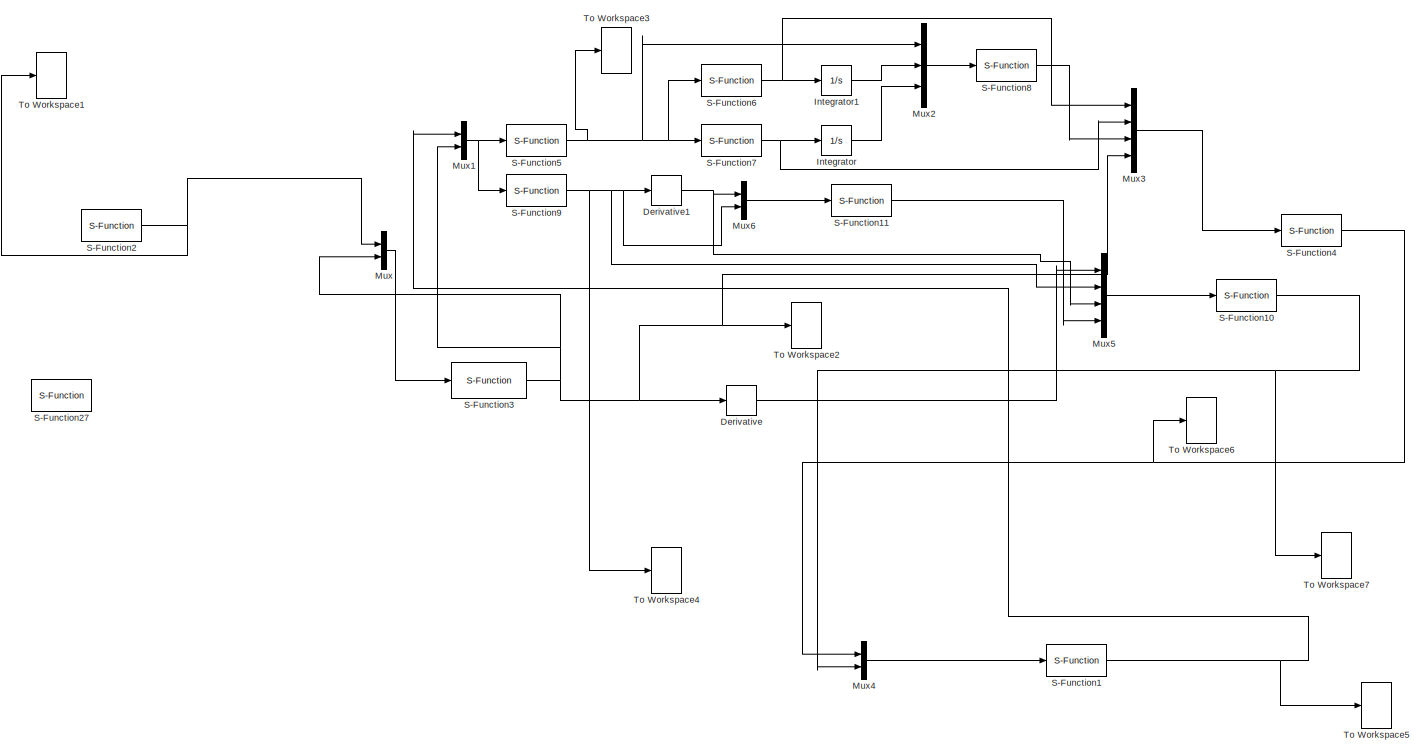
[diagram: root canvas - part 1/3, top center region]
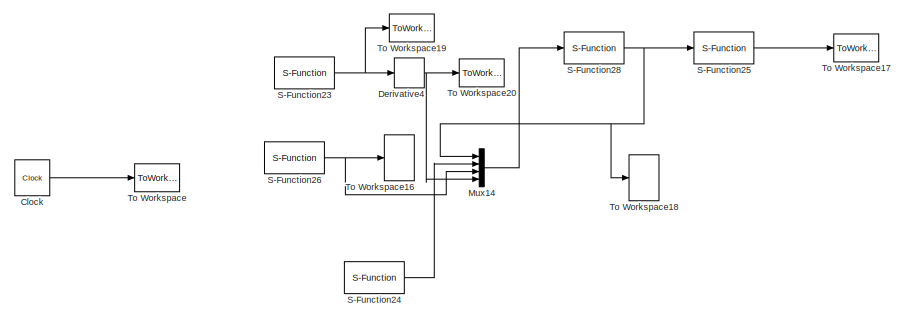
[diagram: root canvas - part 2/3, top left region]
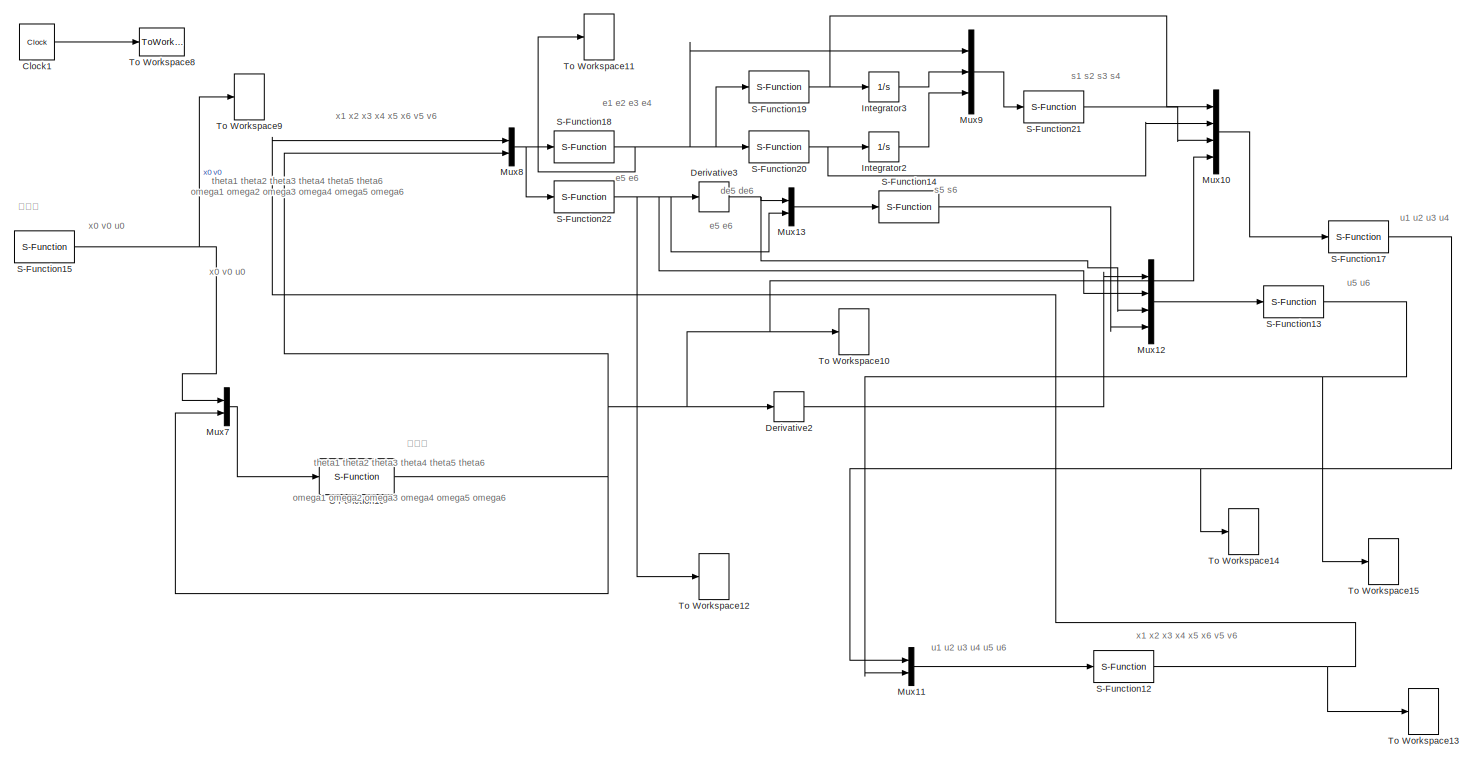
[diagram: root canvas - part 3/3, bottom right region]
MODEL slx_ba2bc7b5ceec
KIND model
CONFIG AbsTol = auto
CONFIG EnableMultiTasking = on
CONFIG FixedStep = 0.001
CONFIG MaxStep = auto
CONFIG MinStep = auto
CONFIG RelTol = 1e-3
CONFIG SampleTimeConstraint = Unconstrained
CONFIG Solver = ode4
CONFIG SolverName = ode4
CONFIG StartTime = 0.0
CONFIG StopTime = 10
BLOCK [Clock] Clock
  DisplayTime = on
BLOCK [Clock] Clock1
  Commented = on
  DisplayTime = on
BLOCK [Derivative] Derivative
  Commented = on
BLOCK [Derivative] Derivative1
  Commented = on
BLOCK [Derivative] Derivative2
  Commented = on
BLOCK [Derivative] Derivative3
  Commented = on
BLOCK [Derivative] Derivative4
BLOCK [Integrator] Integrator
  Commented = on
  Ports = [1, 1]
BLOCK [Integrator] Integrator1
  Commented = on
  Ports = [1, 1]
BLOCK [Integrator] Integrator2
  Commented = on
  Ports = [1, 1]
BLOCK [Integrator] Integrator3
  Commented = on
  Ports = [1, 1]
BLOCK [Mux] Mux
  Commented = on
  DisplayOption = bar
  Inputs = 2
  Ports = [2, 1]
BLOCK [Mux] Mux1
  Commented = on
  DisplayOption = bar
  Inputs = 2
  Ports = [2, 1]
BLOCK [Mux] Mux10
  Commented = on
  DisplayOption = bar
  Ports = [4, 1]
BLOCK [Mux] Mux11
  Commented = on
  DisplayOption = bar
  Inputs = 2
  Ports = [2, 1]
BLOCK [Mux] Mux12
  Commented = on
  DisplayOption = bar
  Ports = [4, 1]
BLOCK [Mux] Mux13
  Commented = on
  DisplayOption = bar
  Inputs = 2
  Ports = [2, 1]
BLOCK [Mux] Mux14
  DisplayOption = bar
  Ports = [4, 1]
BLOCK [Mux] Mux2
  Commented = on
  DisplayOption = bar
  Inputs = 3
  Ports = [3, 1]
BLOCK [Mux] Mux3
  Commented = on
  DisplayOption = bar
  Ports = [4, 1]
BLOCK [Mux] Mux4
  Commented = on
  DisplayOption = bar
  Inputs = 2
  Ports = [2, 1]
BLOCK [Mux] Mux5
  Commented = on
  DisplayOption = bar
  Ports = [4, 1]
BLOCK [Mux] Mux6
  Commented = on
  DisplayOption = bar
  Inputs = 2
  Ports = [2, 1]
BLOCK [Mux] Mux7
  Commented = on
  DisplayOption = bar
  Inputs = 2
  Ports = [2, 1]
BLOCK [Mux] Mux8
  Commented = on
  DisplayOption = bar
  Inputs = 2
  Ports = [2, 1]
BLOCK [Mux] Mux9
  Commented = on
  DisplayOption = bar
  Inputs = 3
  Ports = [3, 1]
BLOCK [S-Function] S-Function1
  Commented = on
  EnableBusSupport = off
  FunctionName = Plant
  Ports = [1, 1]
  SFcnIsStateOwnerBlock = off
  SFunctionDeploymentMode = off
BLOCK [S-Function] S-Function10
  Commented = on
  EnableBusSupport = off
  FunctionName = ul
  Ports = [1, 1]
  SFcnIsStateOwnerBlock = off
  SFunctionDeploymentMode = off
BLOCK [S-Function] S-Function11
  Commented = on
  EnableBusSupport = off
  FunctionName = s_l
  Ports = [1, 1]
  SFcnIsStateOwnerBlock = off
  SFunctionDeploymentMode = off
BLOCK [S-Function] S-Function12
  Commented = on
  EnableBusSupport = off
  FunctionName = Plant
  Ports = [1, 1]
  SFcnIsStateOwnerBlock = off
  SFunctionDeploymentMode = off
BLOCK [S-Function] S-Function13
  Commented = on
  EnableBusSupport = off
  FunctionName = ul
  Ports = [1, 1]
  SFcnIsStateOwnerBlock = off
  SFunctionDeploymentMode = off
BLOCK [S-Function] S-Function14
  Commented = on
  EnableBusSupport = off
  FunctionName = s_l
  Ports = [1, 1]
  SFcnIsStateOwnerBlock = off
  SFunctionDeploymentMode = off
BLOCK [S-Function] S-Function15
  Commented = on
  EnableBusSupport = off
  FunctionName = Leader
  Ports = [0, 1]
  SFcnIsStateOwnerBlock = off
  SFunctionDeploymentMode = off
BLOCK [S-Function] S-Function16
  Commented = on
  EnableBusSupport = off
  FunctionName = Observer
  Ports = [1, 1]
  SFcnIsStateOwnerBlock = off
  SFunctionDeploymentMode = off
BLOCK [S-Function] S-Function17
  Commented = on
  EnableBusSupport = off
  FunctionName = uk
  Ports = [1, 1]
  SFcnIsStateOwnerBlock = off
  SFunctionDeploymentMode = off
BLOCK [S-Function] S-Function18
  Commented = on
  EnableBusSupport = off
  FunctionName = ek
  Ports = [1, 1]
  SFcnIsStateOwnerBlock = off
  SFunctionDeploymentMode = off
BLOCK [S-Function] S-Function19
  Commented = on
  EnableBusSupport = off
  FunctionName = sigrk_ek
  Ports = [1, 1]
  SFcnIsStateOwnerBlock = off
  SFunctionDeploymentMode = off
BLOCK [S-Function] S-Function2
  Commented = on
  EnableBusSupport = off
  FunctionName = Leader
  Ports = [0, 1]
  SFcnIsStateOwnerBlock = off
  SFunctionDeploymentMode = off
BLOCK [S-Function] S-Function20
  Commented = on
  EnableBusSupport = off
  FunctionName = sigkk_ek
  Ports = [1, 1]
  SFcnIsStateOwnerBlock = off
  SFunctionDeploymentMode = off
BLOCK [S-Function] S-Function21
  Commented = on
  EnableBusSupport = off
  FunctionName = s_k
  Ports = [1, 1]
  SFcnIsStateOwnerBlock = off
  SFunctionDeploymentMode = off
BLOCK [S-Function] S-Function22
  Commented = on
  EnableBusSupport = off
  FunctionName = el
  Ports = [1, 1]
  SFcnIsStateOwnerBlock = off
  SFunctionDeploymentMode = off
BLOCK [S-Function] S-Function23
  EnableBusSupport = off
  FunctionName = h3
  Ports = [0, 1]
  SFcnIsStateOwnerBlock = off
  SFunctionDeploymentMode = off
BLOCK [S-Function] S-Function24
  EnableBusSupport = off
  FunctionName = eix0
  Ports = [0, 1]
  SFcnIsStateOwnerBlock = off
  SFunctionDeploymentMode = off
BLOCK [S-Function] S-Function25
  EnableBusSupport = off
  FunctionName = Plant
  Ports = [1, 1]
  SFcnIsStateOwnerBlock = off
  SFunctionDeploymentMode = off
BLOCK [S-Function] S-Function26
  EnableBusSupport = off
  FunctionName = Leader
  Ports = [0, 1]
  SFcnIsStateOwnerBlock = off
  SFunctionDeploymentMode = off
BLOCK [S-Function] S-Function27
  Commented = on
  EnableBusSupport = off
  FunctionName = ul
  Ports = [1, 1]
  SFcnIsStateOwnerBlock = off
  SFunctionDeploymentMode = off
BLOCK [S-Function] S-Function28
  EnableBusSupport = off
  FunctionName = ul
  Ports = [1, 1]
  SFcnIsStateOwnerBlock = off
  SFunctionDeploymentMode = off
BLOCK [S-Function] S-Function3
  Commented = on
  EnableBusSupport = off
  FunctionName = Observer
  Ports = [1, 1]
  SFcnIsStateOwnerBlock = off
  SFunctionDeploymentMode = off
BLOCK [S-Function] S-Function4
  Commented = on
  EnableBusSupport = off
  FunctionName = uk
  Ports = [1, 1]
  SFcnIsStateOwnerBlock = off
  SFunctionDeploymentMode = off
BLOCK [S-Function] S-Function5
  Commented = on
  EnableBusSupport = off
  FunctionName = ek
  Ports = [1, 1]
  SFcnIsStateOwnerBlock = off
  SFunctionDeploymentMode = off
BLOCK [S-Function] S-Function6
  Commented = on
  EnableBusSupport = off
  FunctionName = sigrk_ek
  Ports = [1, 1]
  SFcnIsStateOwnerBlock = off
  SFunctionDeploymentMode = off
BLOCK [S-Function] S-Function7
  Commented = on
  EnableBusSupport = off
  FunctionName = sigkk_ek
  Ports = [1, 1]
  SFcnIsStateOwnerBlock = off
  SFunctionDeploymentMode = off
BLOCK [S-Function] S-Function8
  Commented = on
  EnableBusSupport = off
  FunctionName = s_k
  Ports = [1, 1]
  SFcnIsStateOwnerBlock = off
  SFunctionDeploymentMode = off
BLOCK [S-Function] S-Function9
  Commented = on
  EnableBusSupport = off
  FunctionName = el
  Ports = [1, 1]
  SFcnIsStateOwnerBlock = off
  SFunctionDeploymentMode = off
BLOCK [ToWorkspace] To Workspace
  MaxDataPoints = inf
  Ports = [1]
  SampleTime = -1
  VariableName = t
BLOCK [ToWorkspace] To Workspace1
  Commented = on
  MaxDataPoints = inf
  Ports = [1]
  SampleTime = -1
  VariableName = y1
BLOCK [ToWorkspace] To Workspace10
  Commented = on
  MaxDataPoints = inf
  Ports = [1]
  SampleTime = -1
  VariableName = y5
BLOCK [ToWorkspace] To Workspace11
  Commented = on
  MaxDataPoints = inf
  Ports = [1]
  SampleTime = -1
  VariableName = y6
BLOCK [ToWorkspace] To Workspace12
  Commented = on
  MaxDataPoints = inf
  Ports = [1]
  SampleTime = -1
  VariableName = y7
BLOCK [ToWorkspace] To Workspace13
  Commented = on
  MaxDataPoints = inf
  Ports = [1]
  SampleTime = -1
  VariableName = y8
BLOCK [ToWorkspace] To Workspace14
  Commented = on
  MaxDataPoints = inf
  Ports = [1]
  SampleTime = -1
  VariableName = ut
BLOCK [ToWorkspace] To Workspace15
  Commented = on
  MaxDataPoints = inf
  Ports = [1]
  SampleTime = -1
  VariableName = ut3
BLOCK [ToWorkspace] To Workspace16
  MaxDataPoints = inf
  Ports = [1]
  SampleTime = -1
  VariableName = y10
BLOCK [ToWorkspace] To Workspace17
  MaxDataPoints = inf
  Ports = [1]
  SampleTime = -1
  VariableName = y
BLOCK [ToWorkspace] To Workspace18
  MaxDataPoints = inf
  Ports = [1]
  SampleTime = -1
  VariableName = y11
BLOCK [ToWorkspace] To Workspace19
  MaxDataPoints = inf
  Ports = [1]
  SampleTime = -1
  VariableName = y12
BLOCK [ToWorkspace] To Workspace2
  Commented = on
  MaxDataPoints = inf
  Ports = [1]
  SampleTime = -1
  VariableName = y2
BLOCK [ToWorkspace] To Workspace20
  MaxDataPoints = inf
  Ports = [1]
  SampleTime = -1
  VariableName = y13
BLOCK [ToWorkspace] To Workspace3
  Commented = on
  MaxDataPoints = inf
  Ports = [1]
  SampleTime = -1
  VariableName = y4
BLOCK [ToWorkspace] To Workspace4
  Commented = on
  MaxDataPoints = inf
  Ports = [1]
  SampleTime = -1
  VariableName = y3
BLOCK [ToWorkspace] To Workspace5
  Commented = on
  MaxDataPoints = inf
  Ports = [1]
  SampleTime = -1
  VariableName = y
BLOCK [ToWorkspace] To Workspace6
  Commented = on
  MaxDataPoints = inf
  Ports = [1]
  SampleTime = -1
  VariableName = ut1
BLOCK [ToWorkspace] To Workspace7
  Commented = on
  MaxDataPoints = inf
  Ports = [1]
  SampleTime = -1
  VariableName = ut2
BLOCK [ToWorkspace] To Workspace8
  Commented = on
  MaxDataPoints = inf
  Ports = [1]
  SampleTime = -1
  VariableName = t1
BLOCK [ToWorkspace] To Workspace9
  Commented = on
  MaxDataPoints = inf
  Ports = [1]
  SampleTime = -1
  VariableName = y9
ANNOTATION (root): s1 s2 s3 s4
ANNOTATION (root): x0 v0 u0
ANNOTATION (root): de5 de6
ANNOTATION (root): e1 e2 e3 e4
ANNOTATION (root): e5 e6
ANNOTATION (root): s5 s6
ANNOTATION (root): theta1 theta2 theta3 theta4 theta5 theta6 omega1 omega2 omega3 omega4 omega5 omega6
ANNOTATION (root): u1 u2 u3 u4
ANNOTATION (root): u1 u2 u3 u4 u5 u6
ANNOTATION (root): u5 u6
ANNOTATION (root): x1 x2 x3 x4 x5 x6 v5 v6
ANNOTATION (root): 没问题
LINE Clock1:1 -> To Workspace8:1
LINE Clock:1 -> To Workspace:1
NET Derivative1:1 -> Mux5:3, Mux6:1
LINE Derivative2:1 -> Mux12:1
NET Derivative3:1 -> Mux12:3, Mux13:1
NET Derivative4:1 -> Mux14:4, To Workspace20:1
LINE Derivative:1 -> Mux5:1
LINE Integrator1:1 -> Mux2:2
LINE Integrator2:1 -> Mux9:3
LINE Integrator3:1 -> Mux9:2
LINE Integrator:1 -> Mux2:3
LINE Mux10:1 -> S-Function17:1
LINE Mux11:1 -> S-Function12:1
LINE Mux12:1 -> S-Function13:1
LINE Mux13:1 -> S-Function14:1
LINE Mux14:1 -> S-Function28:1
NET Mux1:1 -> S-Function5:1, S-Function9:1
LINE Mux2:1 -> S-Function8:1
LINE Mux3:1 -> S-Function4:1
LINE Mux4:1 -> S-Function1:1
LINE Mux5:1 -> S-Function10:1
LINE Mux6:1 -> S-Function11:1
LINE Mux7:1 -> S-Function16:1
NET Mux8:1 -> S-Function18:1, S-Function22:1
LINE Mux9:1 -> S-Function21:1
LINE Mux:1 -> S-Function3:1
NET S-Function10:1 -> Mux4:2, To Workspace7:1
LINE S-Function11:1 -> Mux5:4
NET S-Function12:1 -> Mux8:1, To Workspace13:1
NET S-Function13:1 -> Mux11:2, To Workspace15:1
LINE S-Function14:1 -> Mux12:4
NET S-Function15:1 -> Mux7:1, To Workspace9:1
NET S-Function16:1 -> Derivative2:1, Mux10:4, Mux7:2, Mux8:2, To Workspace10:1
NET S-Function17:1 -> Mux11:1, To Workspace14:1
NET S-Function18:1 -> Mux9:1, S-Function19:1, S-Function20:1, To Workspace11:1
NET S-Function19:1 -> Integrator3:1, Mux10:1
NET S-Function1:1 -> Mux1:1, To Workspace5:1
NET S-Function20:1 -> Integrator2:1, Mux10:2
LINE S-Function21:1 -> Mux10:3
NET S-Function22:1 -> Derivative3:1, Mux12:2, Mux13:2, To Workspace12:1
NET S-Function23:1 -> Derivative4:1, To Workspace19:1
LINE S-Function24:1 -> Mux14:2
LINE S-Function25:1 -> To Workspace17:1
NET S-Function26:1 -> Mux14:3, To Workspace16:1
NET S-Function28:1 -> Mux14:1, S-Function25:1, To Workspace18:1
NET S-Function2:1 -> Mux:1, To Workspace1:1
NET S-Function3:1 -> Derivative:1, Mux1:2, Mux3:4, Mux:2, To Workspace2:1
NET S-Function4:1 -> Mux4:1, To Workspace6:1
NET S-Function5:1 -> Mux2:1, S-Function6:1, S-Function7:1, To Workspace3:1
NET S-Function6:1 -> Integrator1:1, Mux3:1
NET S-Function7:1 -> Integrator:1, Mux3:2
LINE S-Function8:1 -> Mux3:3
NET S-Function9:1 -> Derivative1:1, Mux5:2, Mux6:2, To Workspace4:1
note: NET lines group one-source signal fan-out (src -> all destinations, sorted); 1:1 wires keep LINE
